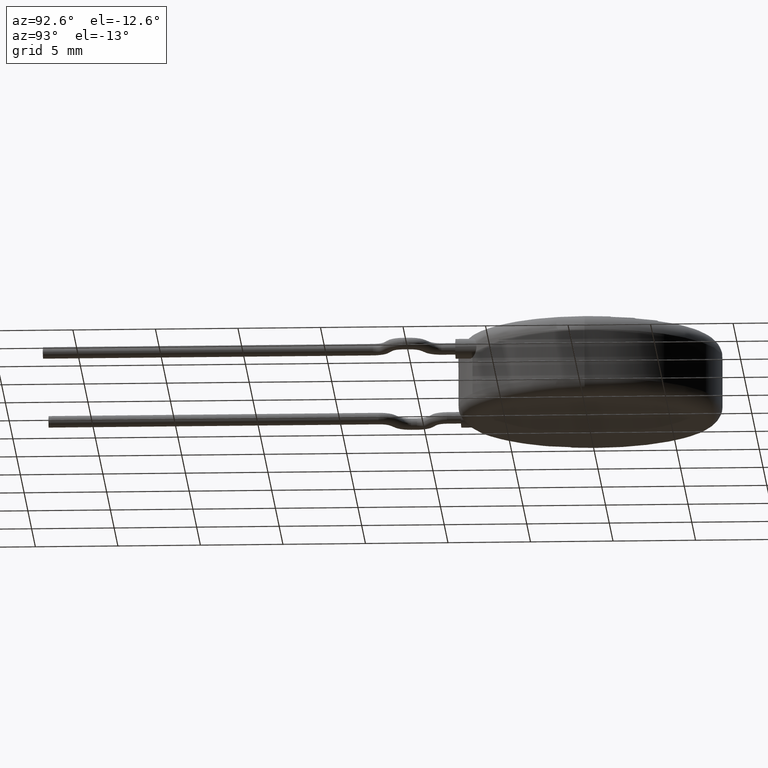
[diagram: clean part render]
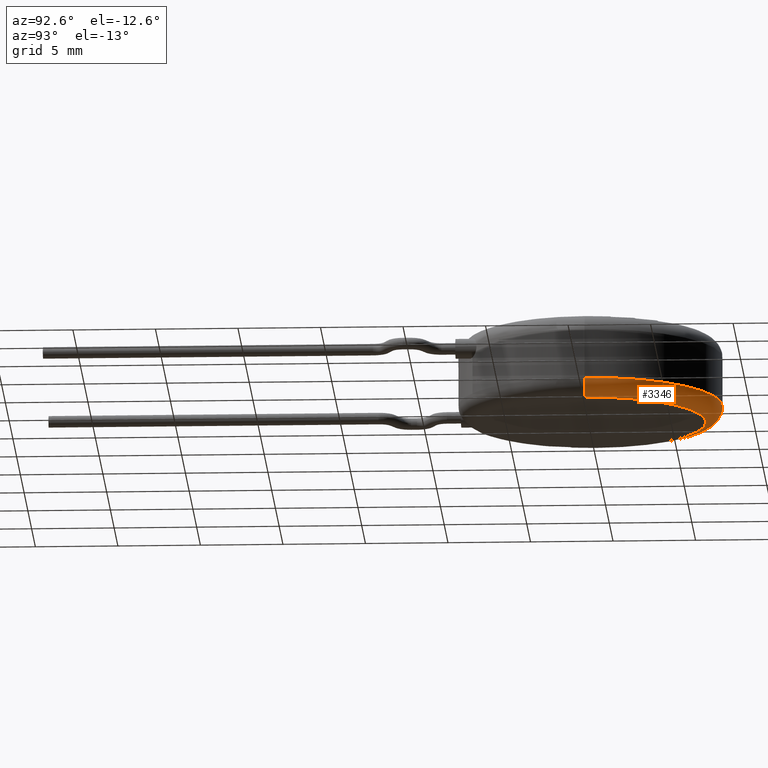
[diagram: same view with one face highlighted and labeled with its STEP entity id]
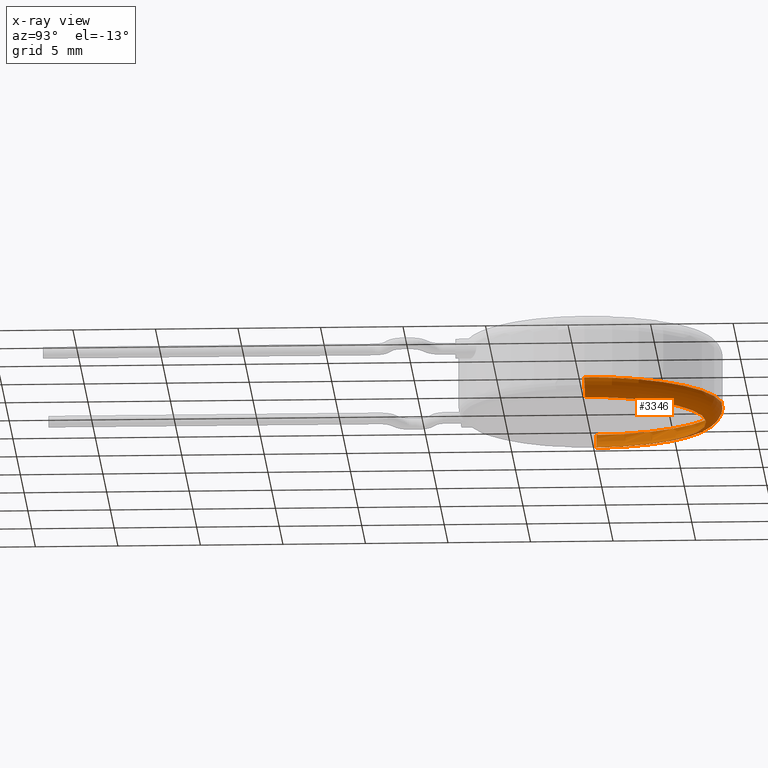
[diagram: x-ray of the same camera — body ghosted, the highlighted face saturated]
A machine part, auxiliary view. The second image highlights one B-rep face of the part: STEP entity #3346.
The next image is the same camera in x-ray: the body ghosted, the highlighted face saturated — about 1% of this face is hidden behind the body in this view.
In plain terms, the highlighted toroidal blend (fillet) surface has major radius 7 mm and minor (blend) radius 1 mm.
Its self-contained STEP definition (entity closure, byte-faithful):
#131 = AXIS2_PLACEMENT_3D ( 'NONE', #157, #2279, #1892 ) ;
#157 = CARTESIAN_POINT ( 'NONE',  ( 0.000000000000000000, 0.000000000000000000, 0.000000000000000000 ) ) ;
#188 = CIRCLE ( 'NONE', #768, 1.000000000000000000 ) ;
#693 = CARTESIAN_POINT ( 'NONE',  ( 0.000000000000000000, 0.000000000000000000, 1.000000000000000000 ) ) ;
#733 = DIRECTION ( 'NONE',  ( 1.000000000000000000, 0.000000000000000000, 0.000000000000000000 ) ) ;
#768 = AXIS2_PLACEMENT_3D ( 'NONE', #1362, #3420, #4344 ) ;
#1032 = EDGE_CURVE ( 'NONE', #3012, #2381, #3111, .T. ) ;
#1066 = CARTESIAN_POINT ( 'NONE',  ( 0.000000000000000000, 0.000000000000000000, 1.000000000000000000 ) ) ;
#1126 = AXIS2_PLACEMENT_3D ( 'NONE', #693, #3054, #733 ) ;
#1190 = CARTESIAN_POINT ( 'NONE',  ( -7.000000000000000000, 9.184850993605147944E-16, 0.000000000000000000 ) ) ;
#1362 = CARTESIAN_POINT ( 'NONE',  ( 7.000000000000000000, 0.000000000000000000, 1.000000000000000000 ) ) ;
#1403 = CARTESIAN_POINT ( 'NONE',  ( 7.000000000000000000, 0.000000000000000000, 0.000000000000000000 ) ) ;
#1417 = AXIS2_PLACEMENT_3D ( 'NONE', #1597, #2638, #2621 ) ;
#1597 = CARTESIAN_POINT ( 'NONE',  ( -7.000000000000000000, 8.572527594031473190E-16, 1.000000000000000000 ) ) ;
#1892 = DIRECTION ( 'NONE',  ( 1.000000000000000000, 0.000000000000000000, 0.000000000000000000 ) ) ;
#1942 = EDGE_CURVE ( 'NONE', #3012, #3958, #3801, .T. ) ;
#2015 = CARTESIAN_POINT ( 'NONE',  ( 8.000000000000000000, 9.797174393178825657E-16, 1.000000000000000000 ) ) ;
#2279 = DIRECTION ( 'NONE',  ( -0.000000000000000000, -0.000000000000000000, -1.000000000000000000 ) ) ;
#2381 = VERTEX_POINT ( 'NONE', #1403 ) ;
#2563 = CARTESIAN_POINT ( 'NONE',  ( -8.000000000000000000, 0.000000000000000000, 1.000000000000000000 ) ) ;
#2621 = DIRECTION ( 'NONE',  ( -1.000000000000000000, 1.224646799147352468E-16, 0.000000000000000000 ) ) ;
#2638 = DIRECTION ( 'NONE',  ( 1.224646799147353207E-16, 1.000000000000000000, -0.000000000000000000 ) ) ;
#2650 = EDGE_CURVE ( 'NONE', #3423, #3958, #3800, .T. ) ;
#2656 = ORIENTED_EDGE ( 'NONE', *, *, #1942, .T. ) ;
#2767 = DIRECTION ( 'NONE',  ( 0.000000000000000000, 0.000000000000000000, 1.000000000000000000 ) ) ;
#2911 = ORIENTED_EDGE ( 'NONE', *, *, #2650, .F. ) ;
#3012 = VERTEX_POINT ( 'NONE', #1190 ) ;
#3054 = DIRECTION ( 'NONE',  ( 0.000000000000000000, 0.000000000000000000, 1.000000000000000000 ) ) ;
#3089 = ORIENTED_EDGE ( 'NONE', *, *, #1032, .F. ) ;
#3111 = CIRCLE ( 'NONE', #131, 7.000000000000000000 ) ;
#3268 = FACE_OUTER_BOUND ( 'NONE', #4069, .T. ) ;
#3346 = ADVANCED_FACE ( 'NONE', ( #3268 ), #4304, .T. ) ;
#3375 = AXIS2_PLACEMENT_3D ( 'NONE', #1066, #2767, #3413 ) ;
#3398 = EDGE_CURVE ( 'NONE', #2381, #3423, #188, .T. ) ;
#3413 = DIRECTION ( 'NONE',  ( 1.000000000000000000, 0.000000000000000000, 0.000000000000000000 ) ) ;
#3420 = DIRECTION ( 'NONE',  ( 0.000000000000000000, -1.000000000000000000, 0.000000000000000000 ) ) ;
#3423 = VERTEX_POINT ( 'NONE', #2015 ) ;
#3800 = CIRCLE ( 'NONE', #3375, 8.000000000000000000 ) ;
#3801 = CIRCLE ( 'NONE', #1417, 1.000000000000000000 ) ;
#3958 = VERTEX_POINT ( 'NONE', #2563 ) ;
#4069 = EDGE_LOOP ( 'NONE', ( #3089, #2656, #2911, #4232 ) ) ;
#4232 = ORIENTED_EDGE ( 'NONE', *, *, #3398, .F. ) ;
#4304 = TOROIDAL_SURFACE ( 'NONE', #1126, 7.000000000000000000, 1.000000000000000000 ) ;
#4344 = DIRECTION ( 'NONE',  ( 0.000000000000000000, 0.000000000000000000, -1.000000000000000000 ) ) ;